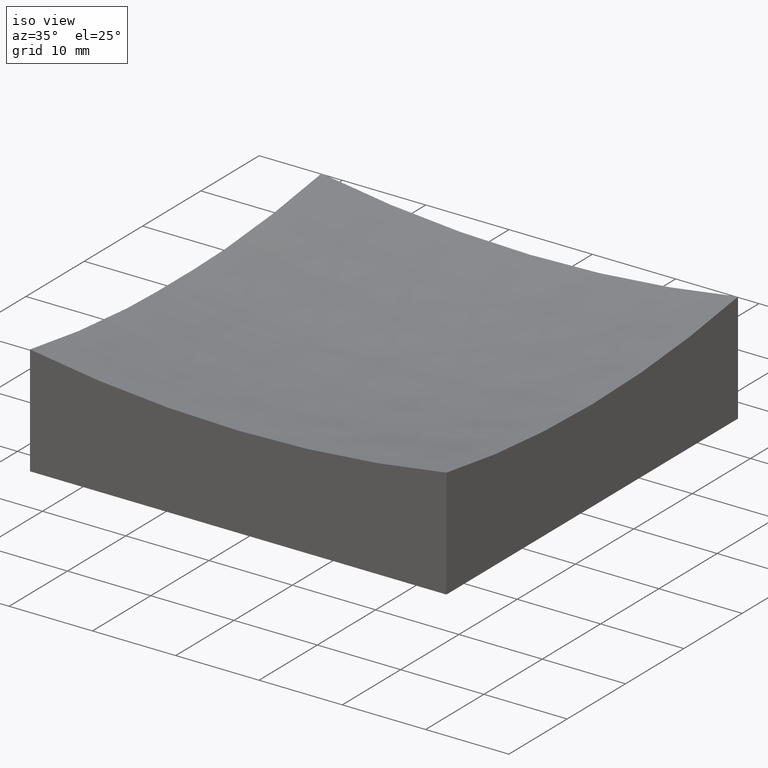
[diagram: clean part render]
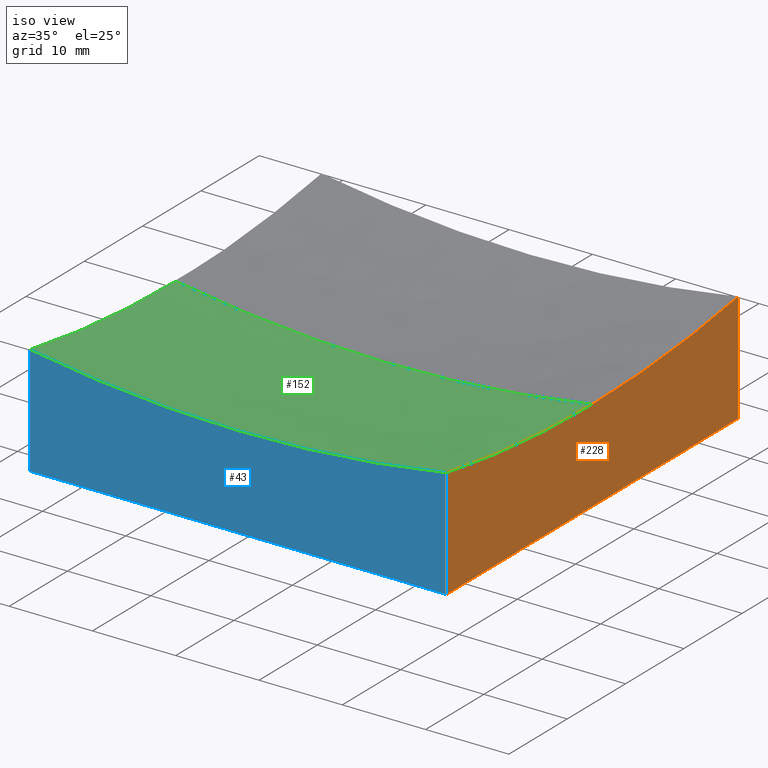
[diagram: same view with three faces highlighted in distinct colors, each labeled with its STEP entity id]
A machine part, iso view with three faces highlighted in distinct colors.
Their STEP definitions:

[orange] entity #228 — the highlighted planar face has unit normal (1, 0, -0).
#5 = AXIS2_PLACEMENT_3D ( 'NONE', #137, #234, #117 ) ;
#6 = CARTESIAN_POINT ( 'NONE',  ( 25.00000000000000000, -25.00000000000000711, 50.00000000000000000 ) ) ;
#9 = VERTEX_POINT ( 'NONE', #13 ) ;
#11 = DIRECTION ( 'NONE',  ( -0.0000000000000000000, -0.0000000000000000000, -1.000000000000000000 ) ) ;
#13 = CARTESIAN_POINT ( 'NONE',  ( 24.99999999999999645, 24.99999999999999645, 13.22620262886753295 ) ) ;
#23 = FACE_OUTER_BOUND ( 'NONE', #207, .T. ) ;
#28 = LINE ( 'NONE', #186, #185 ) ;
#42 = CARTESIAN_POINT ( 'NONE',  ( 24.99999999999999645, 24.99999999999999645, 0.0000000000000000000 ) ) ;
#49 = CIRCLE ( 'NONE', #201, 147.9019945774903704 ) ;
#50 = CARTESIAN_POINT ( 'NONE',  ( 25.00000000000000000, -25.00000000000000711, 13.22620262886753295 ) ) ;
#55 = EDGE_CURVE ( 'NONE', #151, #91, #223, .T. ) ;
#56 = VERTEX_POINT ( 'NONE', #50 ) ;
#64 = DIRECTION ( 'NONE',  ( 1.000000000000000000, 6.938893903907228378E-17, -0.0000000000000000000 ) ) ;
#70 = ORIENTED_EDGE ( 'NONE', *, *, #182, .F. ) ;
#82 = ORIENTED_EDGE ( 'NONE', *, *, #55, .F. ) ;
#91 = VERTEX_POINT ( 'NONE', #206 ) ;
#92 = AXIS2_PLACEMENT_3D ( 'NONE', #181, #221, #118 ) ;
#95 = EDGE_CURVE ( 'NONE', #9, #151, #28, .T. ) ;
#99 = LINE ( 'NONE', #6, #114 ) ;
#105 = DIRECTION ( 'NONE',  ( 6.938893903907228378E-17, -1.000000000000000000, 0.0000000000000000000 ) ) ;
#107 = VERTEX_POINT ( 'NONE', #176 ) ;
#114 = VECTOR ( 'NONE', #222, 1000.000000000000000 ) ;
#115 = PLANE ( 'NONE',  #5 ) ;
#117 = DIRECTION ( 'NONE',  ( -6.938893903907228378E-17, 1.000000000000000000, 0.0000000000000000000 ) ) ;
#118 = DIRECTION ( 'NONE',  ( -7.037322847196354140E-17, 1.000000000000000000, 0.0000000000000000000 ) ) ;
#125 = ORIENTED_EDGE ( 'NONE', *, *, #184, .F. ) ;
#137 = CARTESIAN_POINT ( 'NONE',  ( 24.99999999999999645, 24.99999999999999645, 50.00000000000000000 ) ) ;
#151 = VERTEX_POINT ( 'NONE', #42 ) ;
#159 = CIRCLE ( 'NONE', #92, 147.9019945774903704 ) ;
#176 = CARTESIAN_POINT ( 'NONE',  ( 24.99999999999999645, 9.629649721936179265E-32, 11.09800542250961897 ) ) ;
#178 = CARTESIAN_POINT ( 'NONE',  ( 24.99999999999999645, 1.734723475976805517E-15, 159.0000000000000000 ) ) ;
#181 = CARTESIAN_POINT ( 'NONE',  ( 24.99999999999999645, 1.734723475976805517E-15, 159.0000000000000000 ) ) ;
#182 = EDGE_CURVE ( 'NONE', #56, #107, #159, .T. ) ;
#184 = EDGE_CURVE ( 'NONE', #107, #9, #49, .T. ) ;
#185 = VECTOR ( 'NONE', #11, 1000.000000000000000 ) ;
#186 = CARTESIAN_POINT ( 'NONE',  ( 24.99999999999999645, 24.99999999999999645, 50.00000000000000000 ) ) ;
#191 = ORIENTED_EDGE ( 'NONE', *, *, #197, .T. ) ;
#197 = EDGE_CURVE ( 'NONE', #56, #91, #99, .T. ) ;
#201 = AXIS2_PLACEMENT_3D ( 'NONE', #178, #64, #203 ) ;
#203 = DIRECTION ( 'NONE',  ( -7.037322847196354140E-17, 1.000000000000000000, 0.0000000000000000000 ) ) ;
#206 = CARTESIAN_POINT ( 'NONE',  ( 25.00000000000000000, -25.00000000000000711, 0.0000000000000000000 ) ) ;
#207 = EDGE_LOOP ( 'NONE', ( #70, #191, #82, #249, #125 ) ) ;
#221 = DIRECTION ( 'NONE',  ( 1.000000000000000000, 6.938893903907228378E-17, -0.0000000000000000000 ) ) ;
#222 = DIRECTION ( 'NONE',  ( -0.0000000000000000000, -0.0000000000000000000, -1.000000000000000000 ) ) ;
#223 = LINE ( 'NONE', #241, #224 ) ;
#224 = VECTOR ( 'NONE', #105, 1000.000000000000000 ) ;
#228 = ADVANCED_FACE ( 'NONE', ( #23 ), #115, .T. ) ;
#234 = DIRECTION ( 'NONE',  ( 1.000000000000000000, 6.938893903907228378E-17, -0.0000000000000000000 ) ) ;
#241 = CARTESIAN_POINT ( 'NONE',  ( 24.99999999999999645, 24.99999999999999645, 0.0000000000000000000 ) ) ;
#249 = ORIENTED_EDGE ( 'NONE', *, *, #95, .F. ) ;

[blue] entity #43 — the highlighted planar face has unit normal (0, 1, 0).
#6 = CARTESIAN_POINT ( 'NONE',  ( 25.00000000000000000, -25.00000000000000711, 50.00000000000000000 ) ) ;
#43 = ADVANCED_FACE ( 'NONE', ( #244 ), #188, .F. ) ;
#46 = CIRCLE ( 'NONE', #94, 147.9019945774903420 ) ;
#48 = DIRECTION ( 'NONE',  ( 0.0000000000000000000, 1.000000000000000000, 0.0000000000000000000 ) ) ;
#50 = CARTESIAN_POINT ( 'NONE',  ( 25.00000000000000000, -25.00000000000000711, 13.22620262886753295 ) ) ;
#56 = VERTEX_POINT ( 'NONE', #50 ) ;
#59 = CARTESIAN_POINT ( 'NONE',  ( -25.00000000000000000, -25.00000000000000711, 0.0000000000000000000 ) ) ;
#68 = ORIENTED_EDGE ( 'NONE', *, *, #197, .F. ) ;
#73 = VERTEX_POINT ( 'NONE', #124 ) ;
#77 = LINE ( 'NONE', #162, #195 ) ;
#85 = VECTOR ( 'NONE', #154, 1000.000000000000000 ) ;
#86 = DIRECTION ( 'NONE',  ( 0.0000000000000000000, 1.000000000000000000, 0.0000000000000000000 ) ) ;
#91 = VERTEX_POINT ( 'NONE', #206 ) ;
#94 = AXIS2_PLACEMENT_3D ( 'NONE', #139, #48, #237 ) ;
#99 = LINE ( 'NONE', #6, #114 ) ;
#108 = EDGE_LOOP ( 'NONE', ( #68, #247, #111, #214 ) ) ;
#111 = ORIENTED_EDGE ( 'NONE', *, *, #240, .T. ) ;
#114 = VECTOR ( 'NONE', #222, 1000.000000000000000 ) ;
#116 = DIRECTION ( 'NONE',  ( 1.000000000000000000, 0.0000000000000000000, 0.0000000000000000000 ) ) ;
#124 = CARTESIAN_POINT ( 'NONE',  ( -25.00000000000000000, -25.00000000000000711, 13.22620262886753295 ) ) ;
#139 = CARTESIAN_POINT ( 'NONE',  ( 1.947188410644291696E-14, -25.00000000000000711, 159.0000000000000000 ) ) ;
#144 = EDGE_CURVE ( 'NONE', #231, #91, #77, .T. ) ;
#146 = CARTESIAN_POINT ( 'NONE',  ( -25.00000000000000000, -25.00000000000000711, 50.00000000000000000 ) ) ;
#154 = DIRECTION ( 'NONE',  ( -0.0000000000000000000, -0.0000000000000000000, -1.000000000000000000 ) ) ;
#157 = CARTESIAN_POINT ( 'NONE',  ( -25.00000000000000000, -25.00000000000000711, 50.00000000000000000 ) ) ;
#162 = CARTESIAN_POINT ( 'NONE',  ( -25.00000000000000000, -25.00000000000000711, 0.0000000000000000000 ) ) ;
#168 = AXIS2_PLACEMENT_3D ( 'NONE', #146, #86, #227 ) ;
#188 = PLANE ( 'NONE',  #168 ) ;
#195 = VECTOR ( 'NONE', #116, 1000.000000000000000 ) ;
#197 = EDGE_CURVE ( 'NONE', #56, #91, #99, .T. ) ;
#206 = CARTESIAN_POINT ( 'NONE',  ( 25.00000000000000000, -25.00000000000000711, 0.0000000000000000000 ) ) ;
#210 = EDGE_CURVE ( 'NONE', #56, #73, #46, .T. ) ;
#214 = ORIENTED_EDGE ( 'NONE', *, *, #144, .T. ) ;
#217 = LINE ( 'NONE', #157, #85 ) ;
#222 = DIRECTION ( 'NONE',  ( -0.0000000000000000000, -0.0000000000000000000, -1.000000000000000000 ) ) ;
#227 = DIRECTION ( 'NONE',  ( 0.0000000000000000000, -0.0000000000000000000, 1.000000000000000000 ) ) ;
#231 = VERTEX_POINT ( 'NONE', #59 ) ;
#237 = DIRECTION ( 'NONE',  ( 0.0000000000000000000, 0.0000000000000000000, 1.000000000000000000 ) ) ;
#240 = EDGE_CURVE ( 'NONE', #73, #231, #217, .T. ) ;
#244 = FACE_OUTER_BOUND ( 'NONE', #108, .T. ) ;
#247 = ORIENTED_EDGE ( 'NONE', *, *, #210, .T. ) ;

[green] entity #152 — the highlighted spherical surface has radius 150 mm.
#3 = DIRECTION ( 'NONE',  ( 1.000000000000000000, 6.938893903907228378E-17, -0.0000000000000000000 ) ) ;
#7 = DIRECTION ( 'NONE',  ( -7.037322847196354140E-17, 1.000000000000000000, 0.0000000000000000000 ) ) ;
#15 = ORIENTED_EDGE ( 'NONE', *, *, #142, .F. ) ;
#17 = ORIENTED_EDGE ( 'NONE', *, *, #122, .T. ) ;
#18 = CIRCLE ( 'NONE', #61, 147.9019945774903704 ) ;
#22 = CARTESIAN_POINT ( 'NONE',  ( 1.947188410644291696E-14, 0.0000000000000000000, 159.0000000000000000 ) ) ;
#27 = ORIENTED_EDGE ( 'NONE', *, *, #182, .T. ) ;
#29 = ORIENTED_EDGE ( 'NONE', *, *, #210, .F. ) ;
#46 = CIRCLE ( 'NONE', #94, 147.9019945774903420 ) ;
#48 = DIRECTION ( 'NONE',  ( 0.0000000000000000000, 1.000000000000000000, 0.0000000000000000000 ) ) ;
#50 = CARTESIAN_POINT ( 'NONE',  ( 25.00000000000000000, -25.00000000000000711, 13.22620262886753295 ) ) ;
#53 = EDGE_CURVE ( 'NONE', #173, #107, #127, .T. ) ;
#54 = CIRCLE ( 'NONE', #179, 149.9999999999999716 ) ;
#56 = VERTEX_POINT ( 'NONE', #50 ) ;
#61 = AXIS2_PLACEMENT_3D ( 'NONE', #220, #3, #7 ) ;
#63 = CARTESIAN_POINT ( 'NONE',  ( -25.00000000000000355, 3.061616997868396453E-15, 11.09800542250961897 ) ) ;
#67 = DIRECTION ( 'NONE',  ( -0.0000000000000000000, 1.000000000000000000, 0.0000000000000000000 ) ) ;
#73 = VERTEX_POINT ( 'NONE', #124 ) ;
#80 = CARTESIAN_POINT ( 'NONE',  ( 1.947188410644291696E-14, 0.0000000000000000000, 159.0000000000000000 ) ) ;
#81 = DIRECTION ( 'NONE',  ( 1.000000000000000000, 0.0000000000000000000, 5.551115123125783688E-16 ) ) ;
#84 = DIRECTION ( 'NONE',  ( 0.0000000000000000000, -1.000000000000000000, 0.0000000000000000000 ) ) ;
#92 = AXIS2_PLACEMENT_3D ( 'NONE', #181, #221, #118 ) ;
#94 = AXIS2_PLACEMENT_3D ( 'NONE', #139, #48, #237 ) ;
#97 = DIRECTION ( 'NONE',  ( 1.224646799147353207E-16, 1.000000000000000000, 7.185297002079678583E-32 ) ) ;
#100 = SPHERICAL_SURFACE ( 'NONE', #172, 149.9999999999999716 ) ;
#107 = VERTEX_POINT ( 'NONE', #176 ) ;
#118 = DIRECTION ( 'NONE',  ( -7.037322847196354140E-17, 1.000000000000000000, 0.0000000000000000000 ) ) ;
#122 = EDGE_CURVE ( 'NONE', #173, #164, #54, .T. ) ;
#124 = CARTESIAN_POINT ( 'NONE',  ( -25.00000000000000000, -25.00000000000000711, 13.22620262886753295 ) ) ;
#127 = CIRCLE ( 'NONE', #193, 149.9999999999999716 ) ;
#139 = CARTESIAN_POINT ( 'NONE',  ( 1.947188410644291696E-14, -25.00000000000000711, 159.0000000000000000 ) ) ;
#142 = EDGE_CURVE ( 'NONE', #73, #164, #18, .T. ) ;
#150 = EDGE_LOOP ( 'NONE', ( #171, #17, #15, #29, #27 ) ) ;
#152 = ADVANCED_FACE ( 'NONE', ( #160 ), #100, .F. ) ;
#159 = CIRCLE ( 'NONE', #92, 147.9019945774903704 ) ;
#160 = FACE_OUTER_BOUND ( 'NONE', #150, .T. ) ;
#163 = CARTESIAN_POINT ( 'NONE',  ( 1.166653389736183042E-13, 0.0000000000000000000, 9.000000000000035527 ) ) ;
#164 = VERTEX_POINT ( 'NONE', #63 ) ;
#167 = DIRECTION ( 'NONE',  ( 0.0000000000000000000, 0.0000000000000000000, -1.000000000000000000 ) ) ;
#171 = ORIENTED_EDGE ( 'NONE', *, *, #53, .F. ) ;
#172 = AXIS2_PLACEMENT_3D ( 'NONE', #80, #67, #81 ) ;
#173 = VERTEX_POINT ( 'NONE', #163 ) ;
#176 = CARTESIAN_POINT ( 'NONE',  ( 24.99999999999999645, 9.629649721936179265E-32, 11.09800542250961897 ) ) ;
#179 = AXIS2_PLACEMENT_3D ( 'NONE', #22, #97, #218 ) ;
#181 = CARTESIAN_POINT ( 'NONE',  ( 24.99999999999999645, 1.734723475976805517E-15, 159.0000000000000000 ) ) ;
#182 = EDGE_CURVE ( 'NONE', #56, #107, #159, .T. ) ;
#193 = AXIS2_PLACEMENT_3D ( 'NONE', #208, #84, #167 ) ;
#208 = CARTESIAN_POINT ( 'NONE',  ( 1.947188410644291696E-14, 0.0000000000000000000, 159.0000000000000000 ) ) ;
#210 = EDGE_CURVE ( 'NONE', #56, #73, #46, .T. ) ;
#218 = DIRECTION ( 'NONE',  ( -1.000000000000000000, 1.224646799147353207E-16, 0.0000000000000000000 ) ) ;
#220 = CARTESIAN_POINT ( 'NONE',  ( -25.00000000000000355, -1.734723475976809067E-15, 159.0000000000000000 ) ) ;
#221 = DIRECTION ( 'NONE',  ( 1.000000000000000000, 6.938893903907228378E-17, -0.0000000000000000000 ) ) ;
#237 = DIRECTION ( 'NONE',  ( 0.0000000000000000000, 0.0000000000000000000, 1.000000000000000000 ) ) ;